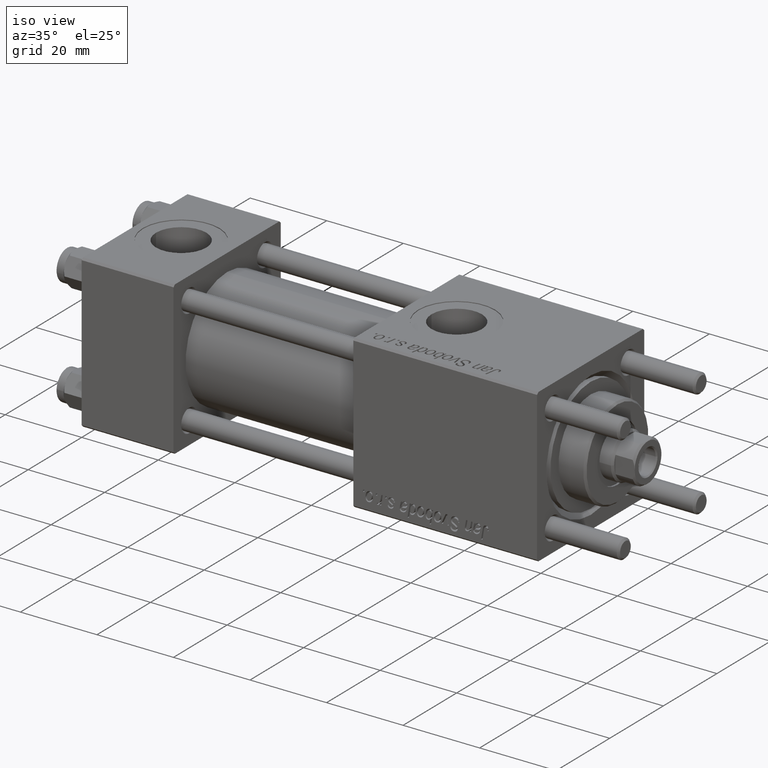
[diagram: clean part render]
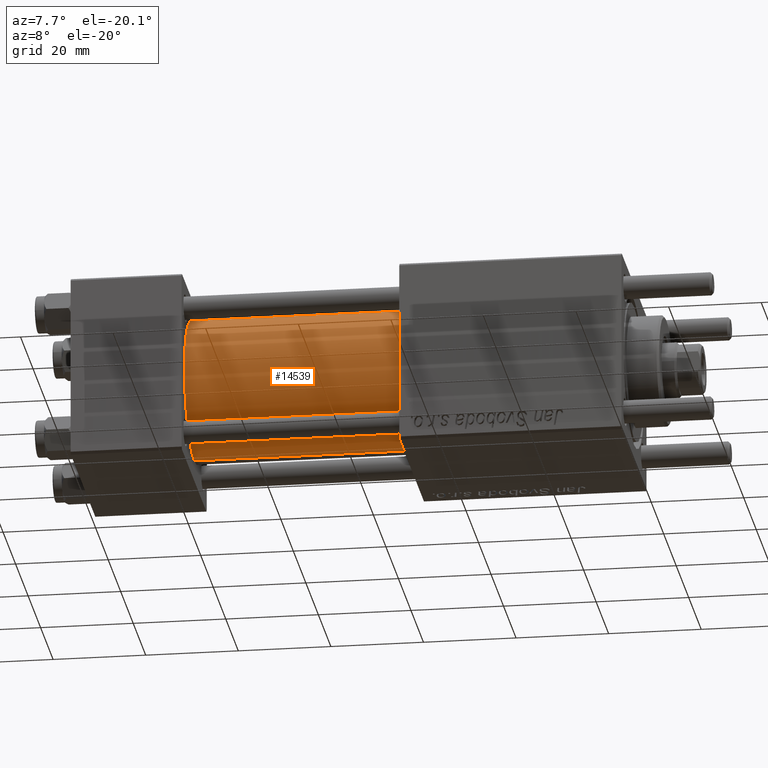
[diagram: tour spotlight — one face highlighted and labeled with its STEP entity id]
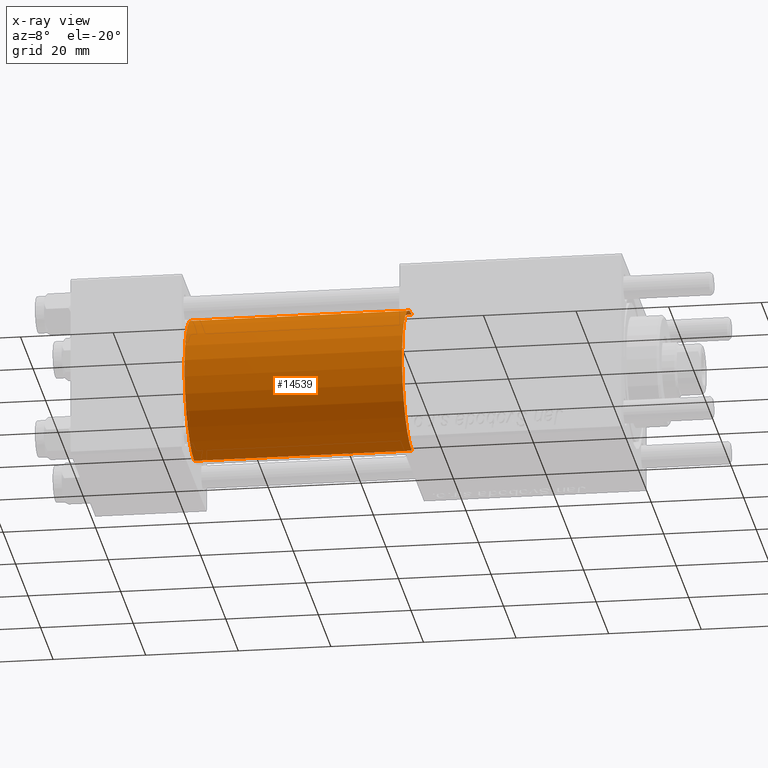
[diagram: x-ray of the same camera — body ghosted, this tour face saturated]
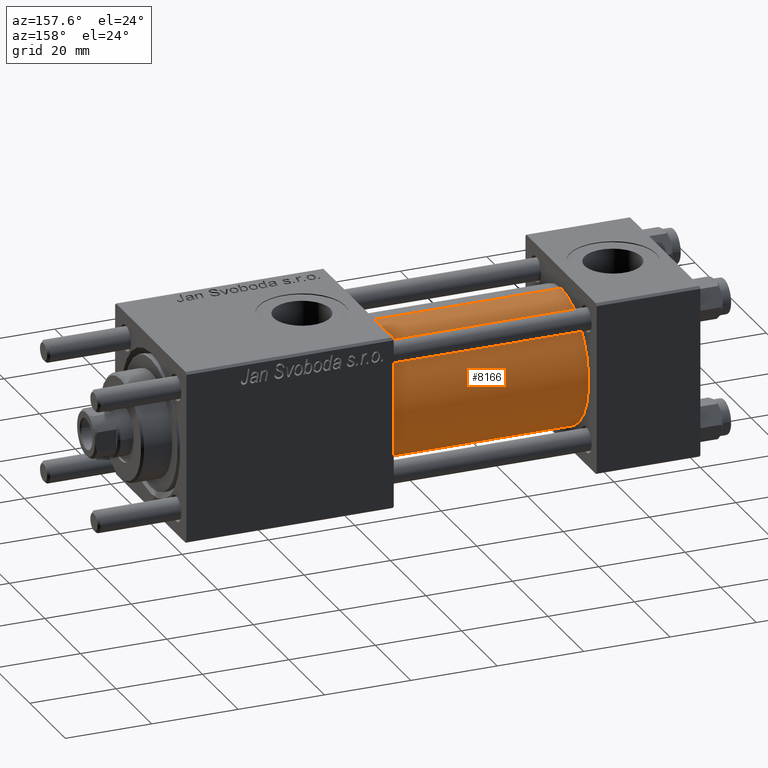
[diagram: tour spotlight — one face highlighted and labeled with its STEP entity id]
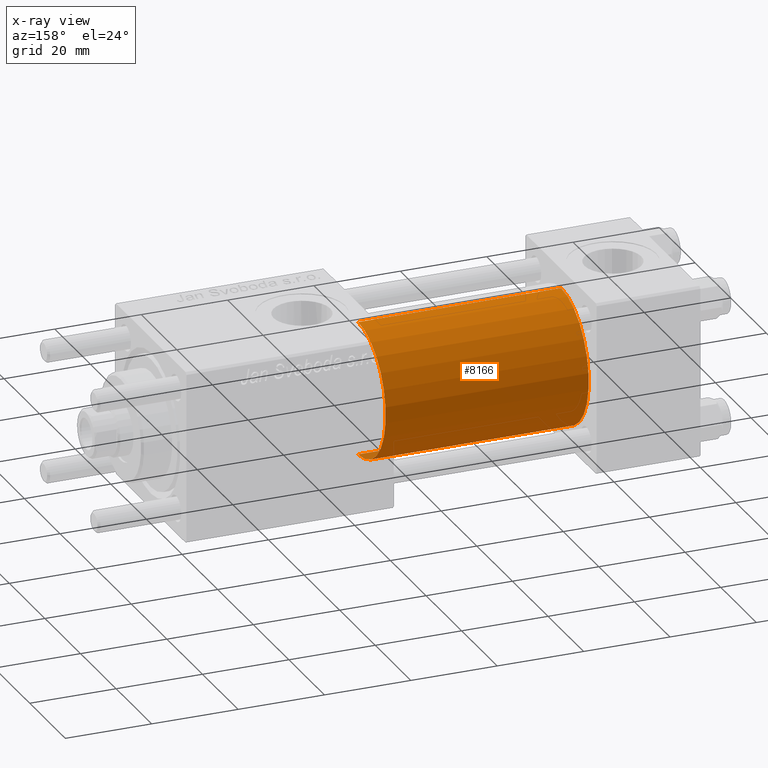
[diagram: x-ray of the same camera — body ghosted, this tour face saturated]
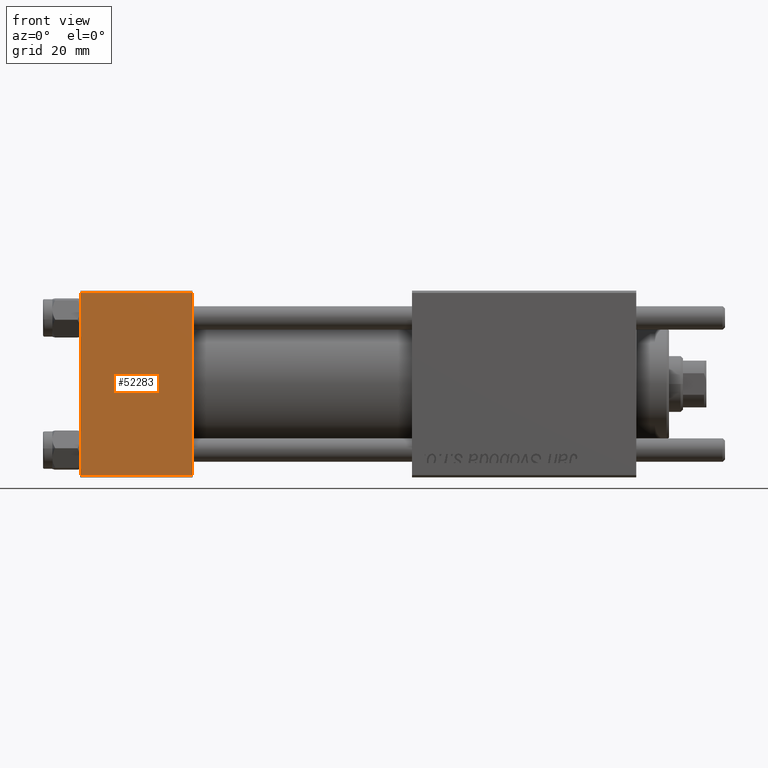
[diagram: tour spotlight — one face highlighted and labeled with its STEP entity id]
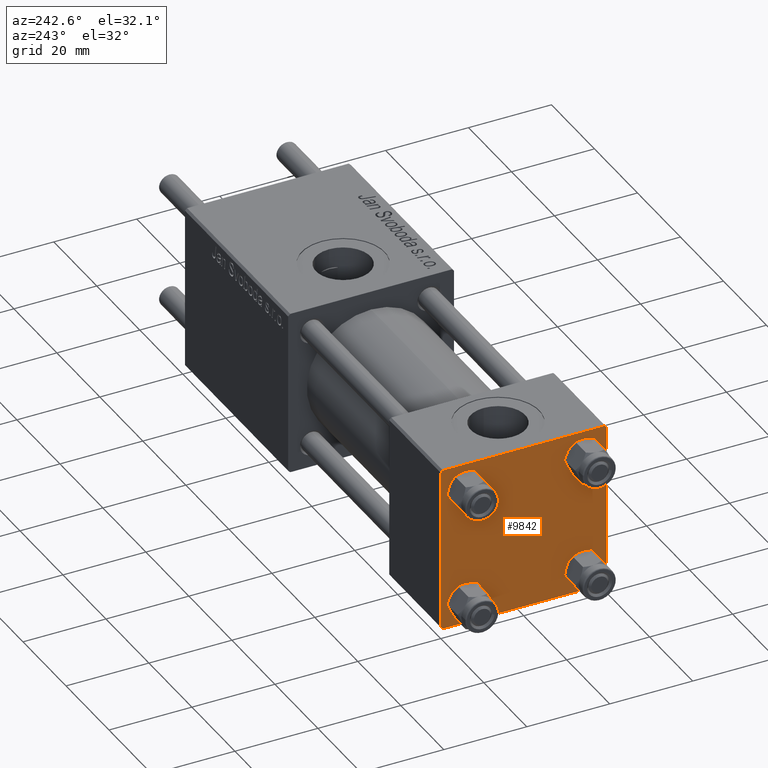
[diagram: tour spotlight — one face highlighted and labeled with its STEP entity id]
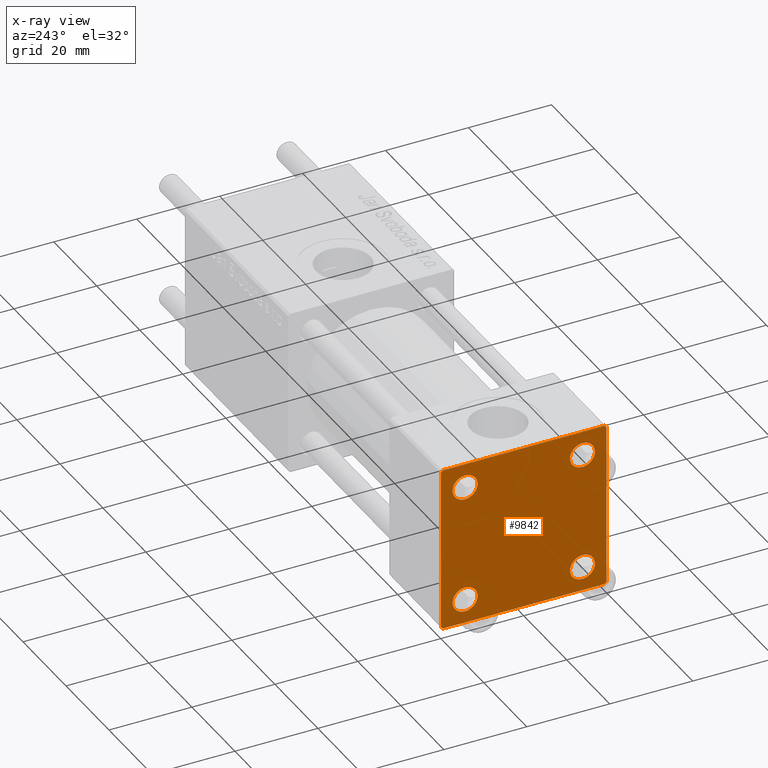
[diagram: x-ray of the same camera — body ghosted, this tour face saturated]
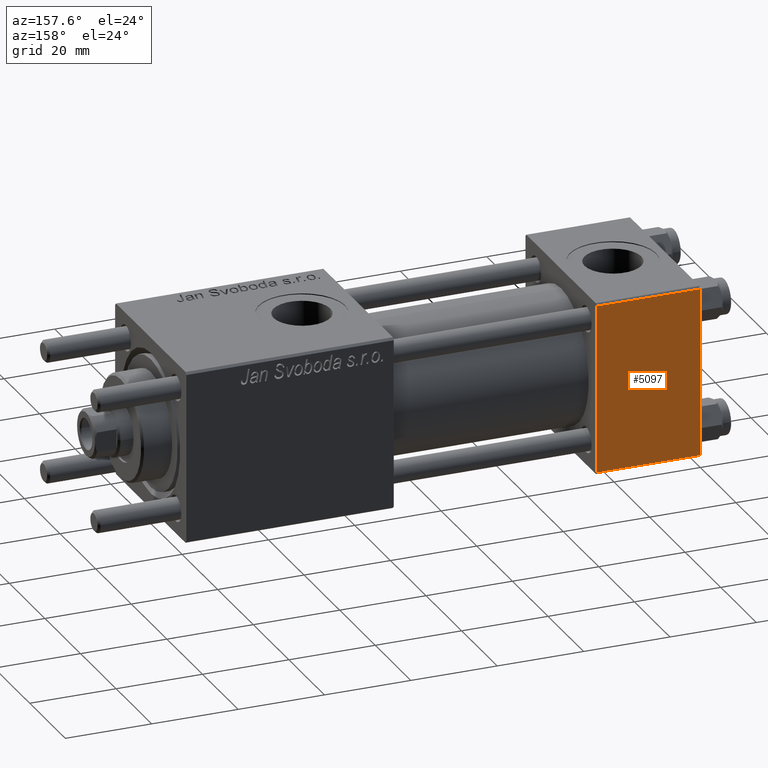
[diagram: tour spotlight — one face highlighted and labeled with its STEP entity id]
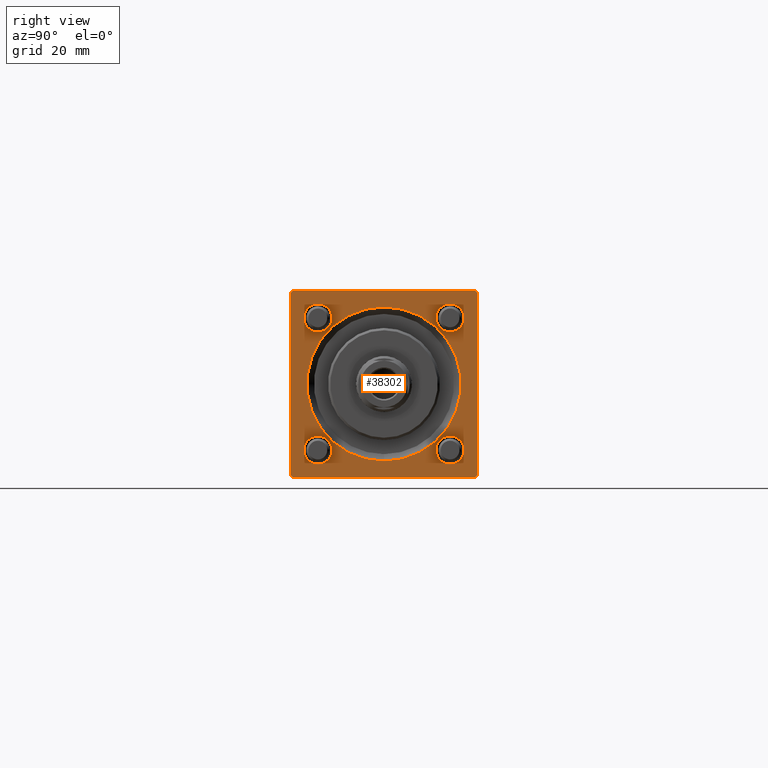
[diagram: tour spotlight — one face highlighted and labeled with its STEP entity id]
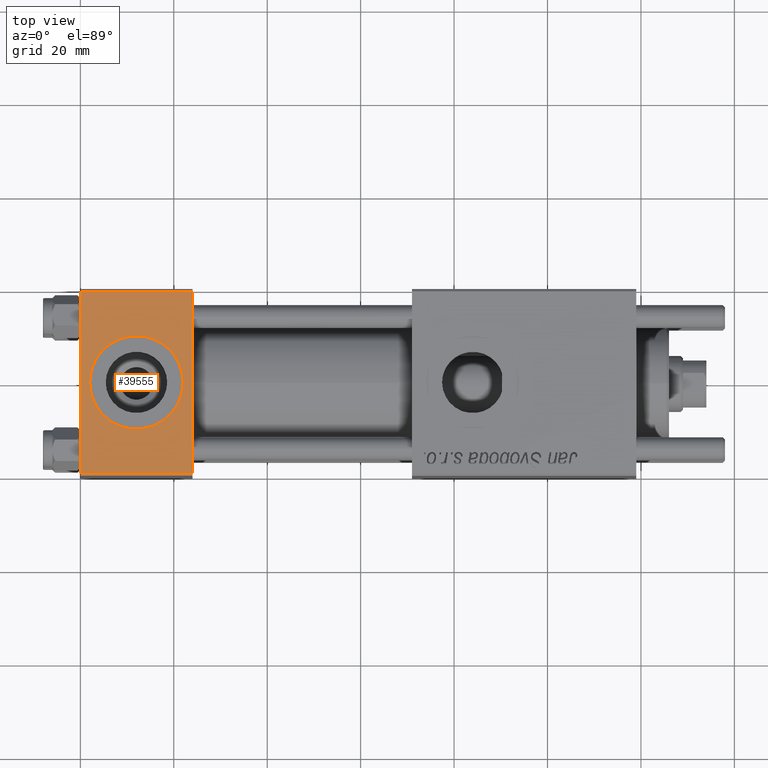
[diagram: tour spotlight — one face highlighted and labeled with its STEP entity id]
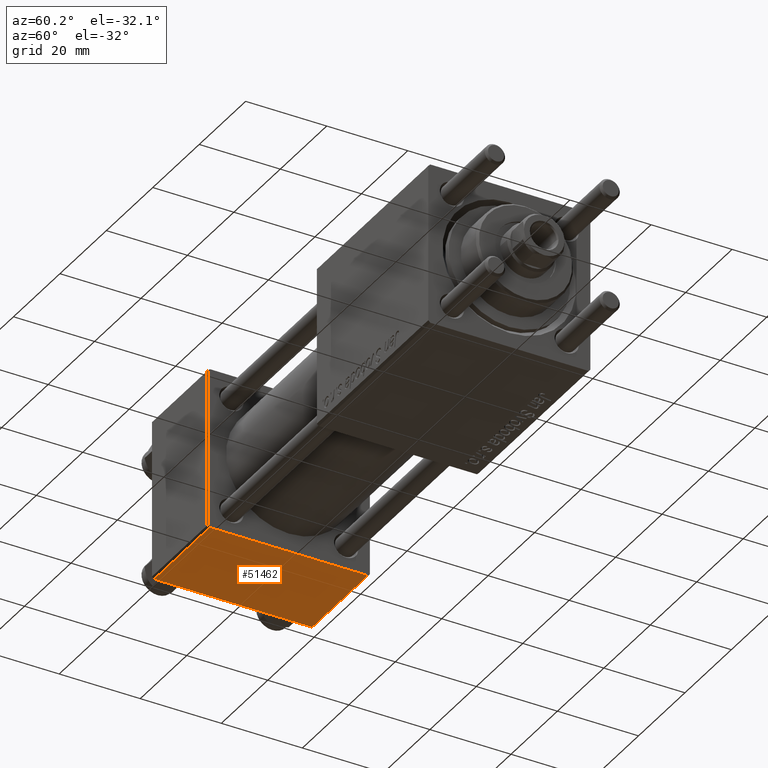
[diagram: tour spotlight — one face highlighted and labeled with its STEP entity id]
A machine part: a face-by-face anatomy tour. The part has 1155 B-rep faces; the first image is the clean iso view, then the 8 largest visible faces are spotlighted one at a time (largest first), each with its STEP entity span.

Face 1 — auxiliary view, entity #14539. An x-ray twin of the same camera follows (body ghosted, this face saturated) — the face is partly hidden behind the body. In plain terms, the highlighted cylindrical surface (partial cylindrical patch) has radius 15.5 mm, axis along (-1, -0, -0).
Definition (entity closure, byte-faithful):
#3411 = FACE_OUTER_BOUND ( 'NONE', #56368, .T. ) ;
#6644 = AXIS2_PLACEMENT_3D ( 'NONE', #25785, #20907, #17427 ) ;
#6660 = EDGE_CURVE ( 'NONE', #21295, #33046, #35747, .T. ) ;
#7955 = CIRCLE ( 'NONE', #17157, 15.50000000000000000 ) ;
#8281 = EDGE_CURVE ( 'NONE', #15133, #33046, #9038, .T. ) ;
#9038 = LINE ( 'NONE', #44904, #13765 ) ;
#10284 = CARTESIAN_POINT ( 'NONE',  ( 71.00000000000001421, -7.038826752868131828E-16, -15.50000000000000000 ) ) ;
#11392 = CARTESIAN_POINT ( 'NONE',  ( 24.00000000000000000, -2.602085213965210642E-15, 15.50000000000000000 ) ) ;
#13759 = DIRECTION ( 'NONE',  ( -1.000000000000000000, -0.000000000000000000, -0.000000000000000000 ) ) ;
#13765 = VECTOR ( 'NONE', #22810, 1000.000000000000000 ) ;
#13843 = DIRECTION ( 'NONE',  ( 0.000000000000000000, 0.000000000000000000, 1.000000000000000000 ) ) ;
#14539 = ADVANCED_FACE ( 'NONE', ( #3411 ), #39250, .T. ) ;
#15133 = VERTEX_POINT ( 'NONE', #10284 ) ;
#17157 = AXIS2_PLACEMENT_3D ( 'NONE', #27937, #44594, #31971 ) ;
#17427 = DIRECTION ( 'NONE',  ( 0.000000000000000000, 0.000000000000000000, 1.000000000000000000 ) ) ;
#19847 = CARTESIAN_POINT ( 'NONE',  ( 71.00000000000001421, -2.602085213965210642E-15, 15.50000000000000000 ) ) ;
#20907 = DIRECTION ( 'NONE',  ( -1.000000000000000000, -0.000000000000000000, -0.000000000000000000 ) ) ;
#21295 = VERTEX_POINT ( 'NONE', #11392 ) ;
#22810 = DIRECTION ( 'NONE',  ( -1.000000000000000000, -0.000000000000000000, -0.000000000000000000 ) ) ;
#25785 = CARTESIAN_POINT ( 'NONE',  ( 71.00000000000001421, -2.602085213965210642E-15, 0.000000000000000000 ) ) ;
#26581 = VERTEX_POINT ( 'NONE', #19847 ) ;
#27487 = AXIS2_PLACEMENT_3D ( 'NONE', #40247, #45125, #13843 ) ;
#27937 = CARTESIAN_POINT ( 'NONE',  ( 71.00000000000001421, -2.602085213965210642E-15, 0.000000000000000000 ) ) ;
#28652 = ORIENTED_EDGE ( 'NONE', *, *, #8281, .F. ) ;
#31971 = DIRECTION ( 'NONE',  ( 0.000000000000000000, 0.000000000000000000, -1.000000000000000000 ) ) ;
#32418 = CARTESIAN_POINT ( 'NONE',  ( 71.00000000000001421, -2.602085213965210642E-15, 15.50000000000000000 ) ) ;
#32913 = EDGE_CURVE ( 'NONE', #26581, #15133, #7955, .T. ) ;
#33046 = VERTEX_POINT ( 'NONE', #41711 ) ;
#33245 = ORIENTED_EDGE ( 'NONE', *, *, #49877, .T. ) ;
#35747 = CIRCLE ( 'NONE', #27487, 15.50000000000000000 ) ;
#38395 = VECTOR ( 'NONE', #13759, 1000.000000000000000 ) ;
#39250 = CYLINDRICAL_SURFACE ( 'NONE', #6644, 15.50000000000000000 ) ;
#40247 = CARTESIAN_POINT ( 'NONE',  ( 24.00000000000000000, -2.602085213965210642E-15, 0.000000000000000000 ) ) ;
#41711 = CARTESIAN_POINT ( 'NONE',  ( 24.00000000000000000, -7.038826752868131828E-16, -15.50000000000000000 ) ) ;
#44594 = DIRECTION ( 'NONE',  ( 1.000000000000000000, 0.000000000000000000, 0.000000000000000000 ) ) ;
#44904 = CARTESIAN_POINT ( 'NONE',  ( 71.00000000000001421, -7.038826752868131828E-16, -15.50000000000000000 ) ) ;
#45125 = DIRECTION ( 'NONE',  ( 1.000000000000000000, 0.000000000000000000, 0.000000000000000000 ) ) ;
#48467 = ORIENTED_EDGE ( 'NONE', *, *, #6660, .T. ) ;
#49877 = EDGE_CURVE ( 'NONE', #26581, #21295, #53371, .T. ) ;
#53371 = LINE ( 'NONE', #32418, #38395 ) ;
#55239 = ORIENTED_EDGE ( 'NONE', *, *, #32913, .F. ) ;
#56368 = EDGE_LOOP ( 'NONE', ( #28652, #55239, #33245, #48467 ) ) ;

Face 2 — auxiliary view, entity #8166. An x-ray twin of the same camera follows (body ghosted, this face saturated) — the face is partly hidden behind the body. In plain terms, the highlighted cylindrical surface (partial cylindrical patch) has radius 15.5 mm, axis along (-1, -0, -0).
Definition (entity closure, byte-faithful):
#372 = EDGE_CURVE ( 'NONE', #33046, #21295, #55914, .T. ) ;
#4640 = ORIENTED_EDGE ( 'NONE', *, *, #49877, .F. ) ;
#4685 = AXIS2_PLACEMENT_3D ( 'NONE', #21157, #38670, #56164 ) ;
#8166 = ADVANCED_FACE ( 'NONE', ( #38635 ), #21120, .T. ) ;
#8281 = EDGE_CURVE ( 'NONE', #15133, #33046, #9038, .T. ) ;
#8408 = EDGE_CURVE ( 'NONE', #15133, #26581, #50490, .T. ) ;
#8816 = ORIENTED_EDGE ( 'NONE', *, *, #372, .T. ) ;
#9038 = LINE ( 'NONE', #44904, #13765 ) ;
#10284 = CARTESIAN_POINT ( 'NONE',  ( 71.00000000000001421, -7.038826752868131828E-16, -15.50000000000000000 ) ) ;
#11392 = CARTESIAN_POINT ( 'NONE',  ( 24.00000000000000000, -2.602085213965210642E-15, 15.50000000000000000 ) ) ;
#13759 = DIRECTION ( 'NONE',  ( -1.000000000000000000, -0.000000000000000000, -0.000000000000000000 ) ) ;
#13765 = VECTOR ( 'NONE', #22810, 1000.000000000000000 ) ;
#13800 = AXIS2_PLACEMENT_3D ( 'NONE', #51202, #20489, #47181 ) ;
#15133 = VERTEX_POINT ( 'NONE', #10284 ) ;
#17548 = ORIENTED_EDGE ( 'NONE', *, *, #8281, .T. ) ;
#19847 = CARTESIAN_POINT ( 'NONE',  ( 71.00000000000001421, -2.602085213965210642E-15, 15.50000000000000000 ) ) ;
#20489 = DIRECTION ( 'NONE',  ( 1.000000000000000000, 0.000000000000000000, 0.000000000000000000 ) ) ;
#21120 = CYLINDRICAL_SURFACE ( 'NONE', #55948, 15.50000000000000000 ) ;
#21157 = CARTESIAN_POINT ( 'NONE',  ( 24.00000000000000000, -2.602085213965210642E-15, 0.000000000000000000 ) ) ;
#21295 = VERTEX_POINT ( 'NONE', #11392 ) ;
#22810 = DIRECTION ( 'NONE',  ( -1.000000000000000000, -0.000000000000000000, -0.000000000000000000 ) ) ;
#26264 = DIRECTION ( 'NONE',  ( -1.000000000000000000, -0.000000000000000000, -0.000000000000000000 ) ) ;
#26581 = VERTEX_POINT ( 'NONE', #19847 ) ;
#32418 = CARTESIAN_POINT ( 'NONE',  ( 71.00000000000001421, -2.602085213965210642E-15, 15.50000000000000000 ) ) ;
#33046 = VERTEX_POINT ( 'NONE', #41711 ) ;
#34052 = CARTESIAN_POINT ( 'NONE',  ( 71.00000000000001421, -2.602085213965210642E-15, 0.000000000000000000 ) ) ;
#38395 = VECTOR ( 'NONE', #13759, 1000.000000000000000 ) ;
#38635 = FACE_OUTER_BOUND ( 'NONE', #48358, .T. ) ;
#38670 = DIRECTION ( 'NONE',  ( 1.000000000000000000, 0.000000000000000000, 0.000000000000000000 ) ) ;
#41711 = CARTESIAN_POINT ( 'NONE',  ( 24.00000000000000000, -7.038826752868131828E-16, -15.50000000000000000 ) ) ;
#44904 = CARTESIAN_POINT ( 'NONE',  ( 71.00000000000001421, -7.038826752868131828E-16, -15.50000000000000000 ) ) ;
#47181 = DIRECTION ( 'NONE',  ( 0.000000000000000000, 0.000000000000000000, -1.000000000000000000 ) ) ;
#48358 = EDGE_LOOP ( 'NONE', ( #49659, #17548, #8816, #4640 ) ) ;
#49659 = ORIENTED_EDGE ( 'NONE', *, *, #8408, .F. ) ;
#49877 = EDGE_CURVE ( 'NONE', #26581, #21295, #53371, .T. ) ;
#50490 = CIRCLE ( 'NONE', #13800, 15.50000000000000000 ) ;
#51202 = CARTESIAN_POINT ( 'NONE',  ( 71.00000000000001421, -2.602085213965210642E-15, 0.000000000000000000 ) ) ;
#52117 = DIRECTION ( 'NONE',  ( 0.000000000000000000, 0.000000000000000000, 1.000000000000000000 ) ) ;
#53371 = LINE ( 'NONE', #32418, #38395 ) ;
#55914 = CIRCLE ( 'NONE', #4685, 15.50000000000000000 ) ;
#55948 = AXIS2_PLACEMENT_3D ( 'NONE', #34052, #26264, #52117 ) ;
#56164 = DIRECTION ( 'NONE',  ( 0.000000000000000000, 0.000000000000000000, 1.000000000000000000 ) ) ;

Face 3 — front view, entity #52283. In plain terms, the highlighted planar face has unit normal (0, 1, 0).
Definition (entity closure, byte-faithful):
#179 = CARTESIAN_POINT ( 'NONE',  ( 24.00000000000000000, -20.00000000000000355, 19.49999999999998224 ) ) ;
#737 = VERTEX_POINT ( 'NONE', #44295 ) ;
#3003 = EDGE_CURVE ( 'NONE', #8495, #11238, #23403, .T. ) ;
#3073 = LINE ( 'NONE', #46124, #28475 ) ;
#3374 = CARTESIAN_POINT ( 'NONE',  ( 24.00000000000000000, -20.00000000000000355, 19.99999999999998934 ) ) ;
#4792 = LINE ( 'NONE', #35507, #48332 ) ;
#7527 = EDGE_CURVE ( 'NONE', #21814, #737, #30426, .T. ) ;
#7673 = FACE_OUTER_BOUND ( 'NONE', #7904, .T. ) ;
#7904 = EDGE_LOOP ( 'NONE', ( #23292, #39798, #43716, #25062 ) ) ;
#8495 = VERTEX_POINT ( 'NONE', #35091 ) ;
#8604 = CARTESIAN_POINT ( 'NONE',  ( 24.00000000000000000, -20.00000000000000000, -19.49999999999999645 ) ) ;
#8787 = EDGE_CURVE ( 'NONE', #8495, #737, #3073, .T. ) ;
#11238 = VERTEX_POINT ( 'NONE', #20146 ) ;
#11955 = VECTOR ( 'NONE', #13185, 1000.000000000000000 ) ;
#12532 = DIRECTION ( 'NONE',  ( -0.000000000000000000, 1.000000000000000000, 8.673617379884036705E-17 ) ) ;
#13185 = DIRECTION ( 'NONE',  ( 1.000000000000000000, 0.000000000000000000, 0.000000000000000000 ) ) ;
#13934 = DIRECTION ( 'NONE',  ( -1.000000000000000000, 0.000000000000000000, 0.000000000000000000 ) ) ;
#20146 = CARTESIAN_POINT ( 'NONE',  ( 0.000000000000000000, -20.00000000000000355, 19.49999999999998224 ) ) ;
#21814 = VERTEX_POINT ( 'NONE', #29841 ) ;
#23292 = ORIENTED_EDGE ( 'NONE', *, *, #46790, .T. ) ;
#23403 = LINE ( 'NONE', #179, #42991 ) ;
#25062 = ORIENTED_EDGE ( 'NONE', *, *, #3003, .T. ) ;
#28311 = DIRECTION ( 'NONE',  ( 0.000000000000000000, 8.673617379884036705E-17, -1.000000000000000000 ) ) ;
#28475 = VECTOR ( 'NONE', #28311, 1000.000000000000000 ) ;
#29841 = CARTESIAN_POINT ( 'NONE',  ( 0.000000000000000000, -20.00000000000000000, -19.49999999999999645 ) ) ;
#30050 = DIRECTION ( 'NONE',  ( 0.000000000000000000, -8.673617379884036705E-17, 1.000000000000000000 ) ) ;
#30426 = LINE ( 'NONE', #8604, #11955 ) ;
#35091 = CARTESIAN_POINT ( 'NONE',  ( 24.00000000000000000, -20.00000000000000355, 19.49999999999998224 ) ) ;
#35507 = CARTESIAN_POINT ( 'NONE',  ( 0.000000000000000000, -20.00000000000000355, 19.99999999999998934 ) ) ;
#36586 = AXIS2_PLACEMENT_3D ( 'NONE', #3374, #12532, #30050 ) ;
#38665 = PLANE ( 'NONE',  #36586 ) ;
#39798 = ORIENTED_EDGE ( 'NONE', *, *, #7527, .T. ) ;
#39800 = DIRECTION ( 'NONE',  ( 0.000000000000000000, 8.673617379884036705E-17, -1.000000000000000000 ) ) ;
#42991 = VECTOR ( 'NONE', #13934, 1000.000000000000000 ) ;
#43716 = ORIENTED_EDGE ( 'NONE', *, *, #8787, .F. ) ;
#44295 = CARTESIAN_POINT ( 'NONE',  ( 24.00000000000000000, -20.00000000000000000, -19.49999999999999645 ) ) ;
#46124 = CARTESIAN_POINT ( 'NONE',  ( 24.00000000000000000, -20.00000000000000355, 19.99999999999998934 ) ) ;
#46790 = EDGE_CURVE ( 'NONE', #11238, #21814, #4792, .T. ) ;
#48332 = VECTOR ( 'NONE', #39800, 1000.000000000000000 ) ;
#52283 = ADVANCED_FACE ( 'NONE', ( #7673 ), #38665, .F. ) ;

Face 4 — auxiliary view, entity #9842. An x-ray twin of the same camera follows (body ghosted, this face saturated) — the face is partly hidden behind the body. In plain terms, the highlighted planar face has unit normal (-1, 0, 0).
Definition (entity closure, byte-faithful):
#17 = DIRECTION ( 'NONE',  ( -0.000000000000000000, -0.7071067811865524577, -0.7071067811865426878 ) ) ;
#291 = CARTESIAN_POINT ( 'NONE',  ( 0.000000000000000000, -14.14999999999999503, -11.15000000000000036 ) ) ;
#469 = EDGE_LOOP ( 'NONE', ( #43109, #28200 ) ) ;
#605 = DIRECTION ( 'NONE',  ( 1.000000000000000000, 0.000000000000000000, 0.000000000000000000 ) ) ;
#1084 = FACE_BOUND ( 'NONE', #469, .T. ) ;
#1301 = DIRECTION ( 'NONE',  ( 0.000000000000000000, 0.000000000000000000, 1.000000000000000000 ) ) ;
#1750 = ORIENTED_EDGE ( 'NONE', *, *, #55201, .T. ) ;
#2070 = EDGE_CURVE ( 'NONE', #11238, #5121, #51434, .T. ) ;
#2271 = ORIENTED_EDGE ( 'NONE', *, *, #2070, .T. ) ;
#3063 = VECTOR ( 'NONE', #43757, 999.9999999999998863 ) ;
#3341 = CIRCLE ( 'NONE', #27149, 3.000000000000004441 ) ;
#3694 = VERTEX_POINT ( 'NONE', #50096 ) ;
#4201 = EDGE_CURVE ( 'NONE', #37782, #8684, #5405, .T. ) ;
#4792 = LINE ( 'NONE', #35507, #48332 ) ;
#5121 = VERTEX_POINT ( 'NONE', #12566 ) ;
#5173 = ORIENTED_EDGE ( 'NONE', *, *, #10164, .T. ) ;
#5375 = CARTESIAN_POINT ( 'NONE',  ( 0.000000000000000000, 0.000000000000000000, 0.000000000000000000 ) ) ;
#5405 = CIRCLE ( 'NONE', #37512, 3.000000000000004441 ) ;
#6353 = EDGE_CURVE ( 'NONE', #13395, #35078, #53306, .T. ) ;
#6874 = DIRECTION ( 'NONE',  ( 1.000000000000000000, 0.000000000000000000, 0.000000000000000000 ) ) ;
#7113 = EDGE_CURVE ( 'NONE', #33342, #16994, #35785, .T. ) ;
#7406 = VERTEX_POINT ( 'NONE', #44181 ) ;
#7538 = DIRECTION ( 'NONE',  ( 1.000000000000000000, 0.000000000000000000, 0.000000000000000000 ) ) ;
#7548 = DIRECTION ( 'NONE',  ( 1.000000000000000000, 0.000000000000000000, 0.000000000000000000 ) ) ;
#7788 = EDGE_LOOP ( 'NONE', ( #27284, #9398 ) ) ;
#7805 = DIRECTION ( 'NONE',  ( -0.000000000000000000, 0.7071067811865500152, 0.7071067811865451302 ) ) ;
#8457 = CARTESIAN_POINT ( 'NONE',  ( 0.000000000000000000, 20.00000000000000000, 20.00000000000000000 ) ) ;
#8684 = VERTEX_POINT ( 'NONE', #291 ) ;
#9198 = VERTEX_POINT ( 'NONE', #15610 ) ;
#9398 = ORIENTED_EDGE ( 'NONE', *, *, #21379, .T. ) ;
#9842 = ADVANCED_FACE ( 'NONE', ( #27186, #1084, #53315, #30655, #35255 ), #30930, .T. ) ;
#9970 = ORIENTED_EDGE ( 'NONE', *, *, #16182, .T. ) ;
#10083 = ORIENTED_EDGE ( 'NONE', *, *, #7113, .T. ) ;
#10164 = EDGE_CURVE ( 'NONE', #38379, #21912, #50522, .T. ) ;
#10618 = EDGE_CURVE ( 'NONE', #3694, #7406, #18078, .T. ) ;
#10692 = ORIENTED_EDGE ( 'NONE', *, *, #6353, .T. ) ;
#10994 = VERTEX_POINT ( 'NONE', #24830 ) ;
#11238 = VERTEX_POINT ( 'NONE', #20146 ) ;
#12398 = CARTESIAN_POINT ( 'NONE',  ( 0.000000000000000000, -14.14999999999999503, 14.15000000000000391 ) ) ;
#12566 = CARTESIAN_POINT ( 'NONE',  ( 0.000000000000000000, -19.49999999999999289, 19.99999999999998934 ) ) ;
#13052 = CARTESIAN_POINT ( 'NONE',  ( -0.000000000000000000, 19.75000000000013500, 19.74999999999986144 ) ) ;
#13145 = DIRECTION ( 'NONE',  ( -1.000000000000000000, 0.000000000000000000, -0.000000000000000000 ) ) ;
#13395 = VERTEX_POINT ( 'NONE', #41287 ) ;
#13986 = CARTESIAN_POINT ( 'NONE',  ( 0.000000000000000000, 20.00000000000000000, 20.00000000000000000 ) ) ;
#14680 = VECTOR ( 'NONE', #20749, 1000.000000000000000 ) ;
#15292 = CARTESIAN_POINT ( 'NONE',  ( 0.000000000000000000, -19.75000000000020961, -19.74999999999979394 ) ) ;
#15545 = CIRCLE ( 'NONE', #36625, 2.999999999999983569 ) ;
#15610 = CARTESIAN_POINT ( 'NONE',  ( 0.000000000000000000, 19.50000000000000000, 20.00000000000000000 ) ) ;
#15866 = LINE ( 'NONE', #15292, #14680 ) ;
#16125 = DIRECTION ( 'NONE',  ( 0.000000000000000000, 0.000000000000000000, 1.000000000000000000 ) ) ;
#16182 = EDGE_CURVE ( 'NONE', #9198, #13395, #16797, .T. ) ;
#16498 = LINE ( 'NONE', #8457, #46420 ) ;
#16797 = LINE ( 'NONE', #13052, #3063 ) ;
#16994 = VERTEX_POINT ( 'NONE', #25789 ) ;
#17234 = LINE ( 'NONE', #34756, #25490 ) ;
#17262 = DIRECTION ( 'NONE',  ( 0.000000000000000000, 0.000000000000000000, 1.000000000000000000 ) ) ;
#17936 = CARTESIAN_POINT ( 'NONE',  ( 0.000000000000000000, 14.14999999999999858, -14.15000000000000036 ) ) ;
#18078 = LINE ( 'NONE', #53103, #33127 ) ;
#18127 = CARTESIAN_POINT ( 'NONE',  ( 0.000000000000000000, -14.14999999999999503, 11.15000000000002345 ) ) ;
#18577 = DIRECTION ( 'NONE',  ( -0.000000000000000000, 0.000000000000000000, 1.000000000000000000 ) ) ;
#20001 = CARTESIAN_POINT ( 'NONE',  ( 0.000000000000000000, -14.14999999999999503, 17.14999999999998792 ) ) ;
#20146 = CARTESIAN_POINT ( 'NONE',  ( 0.000000000000000000, -20.00000000000000355, 19.49999999999998224 ) ) ;
#20442 = ORIENTED_EDGE ( 'NONE', *, *, #55861, .T. ) ;
#20749 = DIRECTION ( 'NONE',  ( 0.000000000000000000, -0.7071067811865401342, 0.7071067811865549002 ) ) ;
#20899 = EDGE_LOOP ( 'NONE', ( #32269, #5173 ) ) ;
#21379 = EDGE_CURVE ( 'NONE', #41069, #10994, #25060, .T. ) ;
#21814 = VERTEX_POINT ( 'NONE', #29841 ) ;
#21912 = VERTEX_POINT ( 'NONE', #20001 ) ;
#22260 = DIRECTION ( 'NONE',  ( 0.000000000000000000, 0.000000000000000000, 1.000000000000000000 ) ) ;
#22417 = DIRECTION ( 'NONE',  ( 0.000000000000000000, 0.000000000000000000, 1.000000000000000000 ) ) ;
#24350 = EDGE_CURVE ( 'NONE', #10994, #41069, #34273, .T. ) ;
#24830 = CARTESIAN_POINT ( 'NONE',  ( 0.000000000000000000, 14.14999999999999858, -11.15000000000001812 ) ) ;
#25060 = CIRCLE ( 'NONE', #36928, 2.999999999999983569 ) ;
#25490 = VECTOR ( 'NONE', #17, 1000.000000000000000 ) ;
#25789 = CARTESIAN_POINT ( 'NONE',  ( 0.000000000000000000, 14.14999999999999858, 11.15000000000001990 ) ) ;
#26161 = DIRECTION ( 'NONE',  ( 1.000000000000000000, 0.000000000000000000, 0.000000000000000000 ) ) ;
#26837 = DIRECTION ( 'NONE',  ( 1.000000000000000000, 0.000000000000000000, 0.000000000000000000 ) ) ;
#27149 = AXIS2_PLACEMENT_3D ( 'NONE', #39348, #26161, #22417 ) ;
#27186 = FACE_BOUND ( 'NONE', #20899, .T. ) ;
#27284 = ORIENTED_EDGE ( 'NONE', *, *, #24350, .T. ) ;
#28200 = ORIENTED_EDGE ( 'NONE', *, *, #4201, .T. ) ;
#28450 = VECTOR ( 'NONE', #7805, 1000.000000000000114 ) ;
#29363 = VECTOR ( 'NONE', #31500, 1000.000000000000000 ) ;
#29841 = CARTESIAN_POINT ( 'NONE',  ( 0.000000000000000000, -20.00000000000000000, -19.49999999999999645 ) ) ;
#30655 = FACE_BOUND ( 'NONE', #49815, .T. ) ;
#30930 = PLANE ( 'NONE',  #44132 ) ;
#31020 = EDGE_CURVE ( 'NONE', #8684, #37782, #3341, .T. ) ;
#31500 = DIRECTION ( 'NONE',  ( 0.000000000000000000, 0.000000000000000000, -1.000000000000000000 ) ) ;
#32269 = ORIENTED_EDGE ( 'NONE', *, *, #52798, .T. ) ;
#32880 = CARTESIAN_POINT ( 'NONE',  ( 0.000000000000000000, 14.14999999999999858, 17.14999999999998437 ) ) ;
#33127 = VECTOR ( 'NONE', #43926, 1000.000000000000000 ) ;
#33342 = VERTEX_POINT ( 'NONE', #32880 ) ;
#33932 = AXIS2_PLACEMENT_3D ( 'NONE', #55753, #7548, #17262 ) ;
#34087 = EDGE_LOOP ( 'NONE', ( #10692, #37320, #52193, #20442, #34236, #2271, #44048, #9970 ) ) ;
#34236 = ORIENTED_EDGE ( 'NONE', *, *, #46790, .F. ) ;
#34273 = CIRCLE ( 'NONE', #56255, 2.999999999999983569 ) ;
#34308 = DIRECTION ( 'NONE',  ( 0.000000000000000000, -1.000000000000000000, -2.602085213965210149E-16 ) ) ;
#34598 = CARTESIAN_POINT ( 'NONE',  ( 0.000000000000000000, 14.14999999999999858, -14.15000000000000036 ) ) ;
#34756 = CARTESIAN_POINT ( 'NONE',  ( -0.000000000000000000, 19.74999999999986855, -19.75000000000014211 ) ) ;
#35078 = VERTEX_POINT ( 'NONE', #36072 ) ;
#35255 = FACE_OUTER_BOUND ( 'NONE', #34087, .T. ) ;
#35507 = CARTESIAN_POINT ( 'NONE',  ( 0.000000000000000000, -20.00000000000000355, 19.99999999999998934 ) ) ;
#35785 = CIRCLE ( 'NONE', #42207, 2.999999999999983569 ) ;
#35912 = DIRECTION ( 'NONE',  ( 0.000000000000000000, 0.000000000000000000, 1.000000000000000000 ) ) ;
#36072 = CARTESIAN_POINT ( 'NONE',  ( 0.000000000000000000, 20.00000000000000000, -19.50000000000002132 ) ) ;
#36342 = EDGE_CURVE ( 'NONE', #9198, #5121, #16498, .T. ) ;
#36625 = AXIS2_PLACEMENT_3D ( 'NONE', #12398, #7538, #16125 ) ;
#36928 = AXIS2_PLACEMENT_3D ( 'NONE', #17936, #48943, #22260 ) ;
#37320 = ORIENTED_EDGE ( 'NONE', *, *, #48315, .T. ) ;
#37512 = AXIS2_PLACEMENT_3D ( 'NONE', #53687, #605, #35912 ) ;
#37782 = VERTEX_POINT ( 'NONE', #41926 ) ;
#38231 = CARTESIAN_POINT ( 'NONE',  ( -0.000000000000000000, -19.74999999999992539, 19.75000000000006395 ) ) ;
#38379 = VERTEX_POINT ( 'NONE', #18127 ) ;
#39348 = CARTESIAN_POINT ( 'NONE',  ( 0.000000000000000000, -14.14999999999999503, -14.15000000000000391 ) ) ;
#39800 = DIRECTION ( 'NONE',  ( 0.000000000000000000, 8.673617379884036705E-17, -1.000000000000000000 ) ) ;
#40647 = DIRECTION ( 'NONE',  ( 0.000000000000000000, 0.000000000000000000, 1.000000000000000000 ) ) ;
#41069 = VERTEX_POINT ( 'NONE', #52609 ) ;
#41287 = CARTESIAN_POINT ( 'NONE',  ( 0.000000000000000000, 20.00000000000000000, 19.49999999999999289 ) ) ;
#41926 = CARTESIAN_POINT ( 'NONE',  ( 0.000000000000000000, -14.14999999999999503, -17.15000000000000924 ) ) ;
#42207 = AXIS2_PLACEMENT_3D ( 'NONE', #46205, #6874, #40647 ) ;
#43109 = ORIENTED_EDGE ( 'NONE', *, *, #31020, .T. ) ;
#43473 = DIRECTION ( 'NONE',  ( 1.000000000000000000, 0.000000000000000000, 0.000000000000000000 ) ) ;
#43757 = DIRECTION ( 'NONE',  ( 0.000000000000000000, 0.7071067811865425767, -0.7071067811865525687 ) ) ;
#43926 = DIRECTION ( 'NONE',  ( 0.000000000000000000, -1.000000000000000000, 1.734723475976807094E-16 ) ) ;
#43981 = CIRCLE ( 'NONE', #33932, 2.999999999999983569 ) ;
#44048 = ORIENTED_EDGE ( 'NONE', *, *, #36342, .F. ) ;
#44132 = AXIS2_PLACEMENT_3D ( 'NONE', #5375, #13145, #18577 ) ;
#44181 = CARTESIAN_POINT ( 'NONE',  ( 0.000000000000000000, -19.50000000000000711, -20.00000000000000000 ) ) ;
#44323 = DIRECTION ( 'NONE',  ( 0.000000000000000000, 0.000000000000000000, 1.000000000000000000 ) ) ;
#46205 = CARTESIAN_POINT ( 'NONE',  ( 0.000000000000000000, 14.14999999999999858, 14.15000000000000036 ) ) ;
#46420 = VECTOR ( 'NONE', #34308, 1000.000000000000000 ) ;
#46790 = EDGE_CURVE ( 'NONE', #11238, #21814, #4792, .T. ) ;
#47791 = AXIS2_PLACEMENT_3D ( 'NONE', #52961, #26837, #1301 ) ;
#48315 = EDGE_CURVE ( 'NONE', #35078, #3694, #17234, .T. ) ;
#48332 = VECTOR ( 'NONE', #39800, 1000.000000000000000 ) ;
#48943 = DIRECTION ( 'NONE',  ( 1.000000000000000000, 0.000000000000000000, 0.000000000000000000 ) ) ;
#49815 = EDGE_LOOP ( 'NONE', ( #10083, #1750 ) ) ;
#50096 = CARTESIAN_POINT ( 'NONE',  ( 0.000000000000000000, 19.50000000000000711, -20.00000000000000711 ) ) ;
#50522 = CIRCLE ( 'NONE', #47791, 2.999999999999983569 ) ;
#51434 = LINE ( 'NONE', #38231, #28450 ) ;
#52193 = ORIENTED_EDGE ( 'NONE', *, *, #10618, .T. ) ;
#52609 = CARTESIAN_POINT ( 'NONE',  ( 0.000000000000000000, 14.14999999999999858, -17.14999999999998437 ) ) ;
#52798 = EDGE_CURVE ( 'NONE', #21912, #38379, #15545, .T. ) ;
#52961 = CARTESIAN_POINT ( 'NONE',  ( 0.000000000000000000, -14.14999999999999503, 14.15000000000000391 ) ) ;
#53103 = CARTESIAN_POINT ( 'NONE',  ( 0.000000000000000000, 20.00000000000000000, -20.00000000000000711 ) ) ;
#53306 = LINE ( 'NONE', #13986, #29363 ) ;
#53315 = FACE_BOUND ( 'NONE', #7788, .T. ) ;
#53687 = CARTESIAN_POINT ( 'NONE',  ( 0.000000000000000000, -14.14999999999999503, -14.15000000000000391 ) ) ;
#55201 = EDGE_CURVE ( 'NONE', #16994, #33342, #43981, .T. ) ;
#55753 = CARTESIAN_POINT ( 'NONE',  ( 0.000000000000000000, 14.14999999999999858, 14.15000000000000036 ) ) ;
#55861 = EDGE_CURVE ( 'NONE', #7406, #21814, #15866, .T. ) ;
#56255 = AXIS2_PLACEMENT_3D ( 'NONE', #34598, #43473, #44323 ) ;

Face 5 — auxiliary view, entity #5097. In plain terms, the highlighted planar face has unit normal (0, 1, 0).
Definition (entity closure, byte-faithful):
#2056 = CARTESIAN_POINT ( 'NONE',  ( 24.00000000000000000, 20.00000000000000000, -19.50000000000002132 ) ) ;
#5097 = ADVANCED_FACE ( 'NONE', ( #27305 ), #53999, .T. ) ;
#6058 = EDGE_LOOP ( 'NONE', ( #50956, #17828, #39541, #22411 ) ) ;
#6353 = EDGE_CURVE ( 'NONE', #13395, #35078, #53306, .T. ) ;
#7790 = CARTESIAN_POINT ( 'NONE',  ( 24.00000000000000000, 20.00000000000000000, 19.49999999999999289 ) ) ;
#11225 = LINE ( 'NONE', #28724, #21441 ) ;
#12649 = LINE ( 'NONE', #7790, #46272 ) ;
#13395 = VERTEX_POINT ( 'NONE', #41287 ) ;
#13986 = CARTESIAN_POINT ( 'NONE',  ( 0.000000000000000000, 20.00000000000000000, 20.00000000000000000 ) ) ;
#16084 = DIRECTION ( 'NONE',  ( 0.000000000000000000, 0.000000000000000000, -1.000000000000000000 ) ) ;
#17828 = ORIENTED_EDGE ( 'NONE', *, *, #24696, .T. ) ;
#21441 = VECTOR ( 'NONE', #16084, 1000.000000000000000 ) ;
#22411 = ORIENTED_EDGE ( 'NONE', *, *, #26676, .T. ) ;
#23571 = LINE ( 'NONE', #53995, #42533 ) ;
#24696 = EDGE_CURVE ( 'NONE', #44856, #35078, #23571, .T. ) ;
#24766 = EDGE_CURVE ( 'NONE', #41490, #44856, #11225, .T. ) ;
#25301 = DIRECTION ( 'NONE',  ( 1.000000000000000000, 0.000000000000000000, 0.000000000000000000 ) ) ;
#26676 = EDGE_CURVE ( 'NONE', #13395, #41490, #12649, .T. ) ;
#27305 = FACE_OUTER_BOUND ( 'NONE', #6058, .T. ) ;
#28724 = CARTESIAN_POINT ( 'NONE',  ( 24.00000000000000000, 20.00000000000000000, 20.00000000000000000 ) ) ;
#29363 = VECTOR ( 'NONE', #31500, 1000.000000000000000 ) ;
#30086 = DIRECTION ( 'NONE',  ( 0.000000000000000000, -0.000000000000000000, 1.000000000000000000 ) ) ;
#31500 = DIRECTION ( 'NONE',  ( 0.000000000000000000, 0.000000000000000000, -1.000000000000000000 ) ) ;
#33047 = DIRECTION ( 'NONE',  ( -0.000000000000000000, 1.000000000000000000, 0.000000000000000000 ) ) ;
#35078 = VERTEX_POINT ( 'NONE', #36072 ) ;
#36072 = CARTESIAN_POINT ( 'NONE',  ( 0.000000000000000000, 20.00000000000000000, -19.50000000000002132 ) ) ;
#36216 = DIRECTION ( 'NONE',  ( -1.000000000000000000, 0.000000000000000000, 0.000000000000000000 ) ) ;
#39541 = ORIENTED_EDGE ( 'NONE', *, *, #6353, .F. ) ;
#40513 = CARTESIAN_POINT ( 'NONE',  ( 24.00000000000000000, 20.00000000000000000, 20.00000000000000000 ) ) ;
#41287 = CARTESIAN_POINT ( 'NONE',  ( 0.000000000000000000, 20.00000000000000000, 19.49999999999999289 ) ) ;
#41490 = VERTEX_POINT ( 'NONE', #42522 ) ;
#42522 = CARTESIAN_POINT ( 'NONE',  ( 24.00000000000000000, 20.00000000000000000, 19.49999999999999289 ) ) ;
#42533 = VECTOR ( 'NONE', #36216, 1000.000000000000000 ) ;
#44856 = VERTEX_POINT ( 'NONE', #2056 ) ;
#46272 = VECTOR ( 'NONE', #25301, 1000.000000000000000 ) ;
#48516 = AXIS2_PLACEMENT_3D ( 'NONE', #40513, #33047, #30086 ) ;
#50956 = ORIENTED_EDGE ( 'NONE', *, *, #24766, .T. ) ;
#53306 = LINE ( 'NONE', #13986, #29363 ) ;
#53995 = CARTESIAN_POINT ( 'NONE',  ( 24.00000000000000000, 20.00000000000000000, -19.50000000000002132 ) ) ;
#53999 = PLANE ( 'NONE',  #48516 ) ;

Face 6 — right view, entity #38302. In plain terms, the highlighted planar face has unit normal (-1, 0, 0).
Definition (entity closure, byte-faithful):
#309 = EDGE_CURVE ( 'NONE', #6033, #15449, #39509, .T. ) ;
#312 = CARTESIAN_POINT ( 'NONE',  ( 119.0000000000000142, 19.99999999999999645, -20.00000000000000000 ) ) ;
#442 = ORIENTED_EDGE ( 'NONE', *, *, #50401, .T. ) ;
#592 = LINE ( 'NONE', #8640, #34964 ) ;
#691 = EDGE_LOOP ( 'NONE', ( #21422, #41797 ) ) ;
#931 = CARTESIAN_POINT ( 'NONE',  ( 119.0000000000000142, 2.020667218593134678E-15, 16.50000000000001421 ) ) ;
#1069 = CARTESIAN_POINT ( 'NONE',  ( 119.0000000000000142, -14.15000000000000036, 14.15000000000000036 ) ) ;
#1969 = CARTESIAN_POINT ( 'NONE',  ( 119.0000000000000142, 19.99999999999999645, 20.00000000000000000 ) ) ;
#2068 = DIRECTION ( 'NONE',  ( -1.000000000000000000, -0.000000000000000000, -0.000000000000000000 ) ) ;
#2116 = CARTESIAN_POINT ( 'NONE',  ( 119.0000000000000142, -14.15000000000000036, -17.15000000000000568 ) ) ;
#2231 = VERTEX_POINT ( 'NONE', #39900 ) ;
#2570 = CARTESIAN_POINT ( 'NONE',  ( 119.0000000000000142, 0.000000000000000000, 0.000000000000000000 ) ) ;
#2806 = DIRECTION ( 'NONE',  ( 0.000000000000000000, 0.000000000000000000, 1.000000000000000000 ) ) ;
#3270 = FACE_BOUND ( 'NONE', #35781, .T. ) ;
#3709 = EDGE_CURVE ( 'NONE', #13763, #4012, #23745, .T. ) ;
#3844 = CARTESIAN_POINT ( 'NONE',  ( 119.0000000000000142, -20.00000000000000355, 19.99999999999999645 ) ) ;
#3924 = VERTEX_POINT ( 'NONE', #53759 ) ;
#4012 = VERTEX_POINT ( 'NONE', #54046 ) ;
#5412 = EDGE_LOOP ( 'NONE', ( #49824, #16365 ) ) ;
#5719 = CARTESIAN_POINT ( 'NONE',  ( 119.0000000000000142, -14.15000000000000036, 14.15000000000000036 ) ) ;
#5730 = DIRECTION ( 'NONE',  ( 0.000000000000000000, 0.000000000000000000, 1.000000000000000000 ) ) ;
#5776 = VERTEX_POINT ( 'NONE', #931 ) ;
#6033 = VERTEX_POINT ( 'NONE', #22670 ) ;
#6337 = VERTEX_POINT ( 'NONE', #35527 ) ;
#7283 = CARTESIAN_POINT ( 'NONE',  ( 119.0000000000000142, -14.15000000000000036, 17.14999999999997726 ) ) ;
#7643 = EDGE_CURVE ( 'NONE', #48478, #29348, #50447, .T. ) ;
#8405 = PLANE ( 'NONE',  #10727 ) ;
#8640 = CARTESIAN_POINT ( 'NONE',  ( 119.0000000000000142, -20.00000000000000355, 19.50000000000002487 ) ) ;
#9383 = VECTOR ( 'NONE', #46314, 1000.000000000000114 ) ;
#9457 = DIRECTION ( 'NONE',  ( 0.000000000000000000, 0.000000000000000000, 1.000000000000000000 ) ) ;
#9713 = DIRECTION ( 'NONE',  ( 0.000000000000000000, -0.7071067811865574537, 0.7071067811865376918 ) ) ;
#9973 = DIRECTION ( 'NONE',  ( -1.000000000000000000, -0.000000000000000000, -0.000000000000000000 ) ) ;
#10033 = DIRECTION ( 'NONE',  ( -1.000000000000000000, -0.000000000000000000, -0.000000000000000000 ) ) ;
#10253 = DIRECTION ( 'NONE',  ( 0.000000000000000000, 0.000000000000000000, 1.000000000000000000 ) ) ;
#10727 = AXIS2_PLACEMENT_3D ( 'NONE', #29949, #38848, #25925 ) ;
#10908 = AXIS2_PLACEMENT_3D ( 'NONE', #32883, #41765, #50384 ) ;
#11387 = EDGE_CURVE ( 'NONE', #52617, #35688, #592, .T. ) ;
#11563 = EDGE_LOOP ( 'NONE', ( #33735, #442 ) ) ;
#11826 = CARTESIAN_POINT ( 'NONE',  ( 119.0000000000000142, -14.15000000000000036, -14.15000000000000036 ) ) ;
#12165 = FACE_OUTER_BOUND ( 'NONE', #26311, .T. ) ;
#12177 = LINE ( 'NONE', #3844, #14247 ) ;
#13075 = CIRCLE ( 'NONE', #41473, 2.999999999999973355 ) ;
#13762 = EDGE_CURVE ( 'NONE', #30330, #3924, #21038, .T. ) ;
#13763 = VERTEX_POINT ( 'NONE', #37994 ) ;
#14008 = CARTESIAN_POINT ( 'NONE',  ( 119.0000000000000142, -19.50000000000002487, -20.00000000000000000 ) ) ;
#14169 = CIRCLE ( 'NONE', #48103, 3.000000000000004441 ) ;
#14247 = VECTOR ( 'NONE', #15894, 1000.000000000000000 ) ;
#14301 = LINE ( 'NONE', #1969, #39080 ) ;
#14344 = LINE ( 'NONE', #312, #40094 ) ;
#14616 = DIRECTION ( 'NONE',  ( -1.000000000000000000, -0.000000000000000000, -0.000000000000000000 ) ) ;
#14686 = EDGE_CURVE ( 'NONE', #47232, #23454, #13075, .T. ) ;
#14889 = ORIENTED_EDGE ( 'NONE', *, *, #13762, .T. ) ;
#15086 = CARTESIAN_POINT ( 'NONE',  ( 119.0000000000000142, 19.99999999999999645, 19.49999999999998579 ) ) ;
#15441 = CARTESIAN_POINT ( 'NONE',  ( 119.0000000000000142, 14.15000000000000036, 14.15000000000000036 ) ) ;
#15449 = VERTEX_POINT ( 'NONE', #2116 ) ;
#15501 = CARTESIAN_POINT ( 'NONE',  ( 119.0000000000000142, 19.99999999999999645, 20.00000000000000000 ) ) ;
#15894 = DIRECTION ( 'NONE',  ( 0.000000000000000000, 8.673617379884036705E-17, -1.000000000000000000 ) ) ;
#16365 = ORIENTED_EDGE ( 'NONE', *, *, #14686, .T. ) ;
#16858 = ORIENTED_EDGE ( 'NONE', *, *, #24029, .T. ) ;
#17198 = CARTESIAN_POINT ( 'NONE',  ( 119.0000000000000142, 0.000000000000000000, -16.50000000000001421 ) ) ;
#17720 = CARTESIAN_POINT ( 'NONE',  ( 119.0000000000000142, 0.000000000000000000, 0.000000000000000000 ) ) ;
#17746 = CARTESIAN_POINT ( 'NONE',  ( 119.0000000000000142, 19.49999999999996803, 20.00000000000000000 ) ) ;
#17800 = DIRECTION ( 'NONE',  ( 0.000000000000000000, -1.000000000000000000, 0.000000000000000000 ) ) ;
#18084 = DIRECTION ( 'NONE',  ( -0.000000000000000000, -0.7071067811865573427, -0.7071067811865376918 ) ) ;
#18595 = DIRECTION ( 'NONE',  ( 0.000000000000000000, 0.7071067811865376918, -0.7071067811865574537 ) ) ;
#19111 = CIRCLE ( 'NONE', #40206, 3.000000000000000888 ) ;
#19675 = CARTESIAN_POINT ( 'NONE',  ( 119.0000000000000142, -14.15000000000000036, 11.15000000000002700 ) ) ;
#20108 = VERTEX_POINT ( 'NONE', #32504 ) ;
#20479 = CARTESIAN_POINT ( 'NONE',  ( 119.0000000000000142, 19.99999999999999645, -19.50000000000000000 ) ) ;
#20923 = EDGE_CURVE ( 'NONE', #24066, #5776, #46110, .T. ) ;
#21038 = LINE ( 'NONE', #20479, #9383 ) ;
#21422 = ORIENTED_EDGE ( 'NONE', *, *, #20923, .T. ) ;
#21557 = DIRECTION ( 'NONE',  ( 0.000000000000000000, 0.000000000000000000, 1.000000000000000000 ) ) ;
#22670 = CARTESIAN_POINT ( 'NONE',  ( 119.0000000000000142, -14.15000000000000036, -11.14999999999999680 ) ) ;
#23116 = EDGE_CURVE ( 'NONE', #32597, #2231, #35555, .T. ) ;
#23190 = AXIS2_PLACEMENT_3D ( 'NONE', #2570, #14616, #5730 ) ;
#23313 = CARTESIAN_POINT ( 'NONE',  ( 119.0000000000000142, 19.49999999999999645, -20.00000000000000000 ) ) ;
#23441 = DIRECTION ( 'NONE',  ( -1.000000000000000000, -0.000000000000000000, -0.000000000000000000 ) ) ;
#23454 = VERTEX_POINT ( 'NONE', #19675 ) ;
#23745 = CIRCLE ( 'NONE', #10908, 3.000000000000004441 ) ;
#23828 = AXIS2_PLACEMENT_3D ( 'NONE', #33228, #55323, #2806 ) ;
#24029 = EDGE_CURVE ( 'NONE', #2231, #52617, #46807, .T. ) ;
#24066 = VERTEX_POINT ( 'NONE', #17198 ) ;
#24140 = DIRECTION ( 'NONE',  ( 0.000000000000000000, -1.000000000000000000, -8.673617379884035472E-17 ) ) ;
#24453 = DIRECTION ( 'NONE',  ( 0.000000000000000000, 0.000000000000000000, 1.000000000000000000 ) ) ;
#25456 = CARTESIAN_POINT ( 'NONE',  ( 119.0000000000000142, 14.15000000000000036, 11.14999999999999858 ) ) ;
#25918 = EDGE_CURVE ( 'NONE', #23454, #47232, #46224, .T. ) ;
#25925 = DIRECTION ( 'NONE',  ( -0.000000000000000000, 0.000000000000000000, 1.000000000000000000 ) ) ;
#25994 = VECTOR ( 'NONE', #9713, 999.9999999999998863 ) ;
#26029 = VECTOR ( 'NONE', #24140, 1000.000000000000000 ) ;
#26311 = EDGE_LOOP ( 'NONE', ( #28626, #42672, #49297, #14889, #38139, #36940, #16858, #56254 ) ) ;
#26542 = EDGE_CURVE ( 'NONE', #4012, #13763, #14169, .T. ) ;
#27128 = EDGE_CURVE ( 'NONE', #5776, #24066, #29806, .T. ) ;
#27488 = LINE ( 'NONE', #14008, #29294 ) ;
#28626 = ORIENTED_EDGE ( 'NONE', *, *, #30062, .T. ) ;
#29236 = DIRECTION ( 'NONE',  ( 0.000000000000000000, 0.000000000000000000, 1.000000000000000000 ) ) ;
#29294 = VECTOR ( 'NONE', #18595, 999.9999999999998863 ) ;
#29348 = VERTEX_POINT ( 'NONE', #54508 ) ;
#29526 = DIRECTION ( 'NONE',  ( -1.000000000000000000, -0.000000000000000000, -0.000000000000000000 ) ) ;
#29806 = CIRCLE ( 'NONE', #55444, 16.50000000000001421 ) ;
#29854 = CARTESIAN_POINT ( 'NONE',  ( 119.0000000000000142, -20.00000000000000355, 19.50000000000002487 ) ) ;
#29949 = CARTESIAN_POINT ( 'NONE',  ( 119.0000000000000142, 0.000000000000000000, 0.000000000000000000 ) ) ;
#30062 = EDGE_CURVE ( 'NONE', #35688, #20108, #12177, .T. ) ;
#30330 = VERTEX_POINT ( 'NONE', #23313 ) ;
#31663 = CARTESIAN_POINT ( 'NONE',  ( 119.0000000000000142, -19.50000000000001776, 19.99999999999999645 ) ) ;
#32321 = EDGE_CURVE ( 'NONE', #32597, #3924, #14301, .T. ) ;
#32504 = CARTESIAN_POINT ( 'NONE',  ( 119.0000000000000142, -20.00000000000000000, -19.50000000000001066 ) ) ;
#32597 = VERTEX_POINT ( 'NONE', #15086 ) ;
#32883 = CARTESIAN_POINT ( 'NONE',  ( 119.0000000000000142, 14.15000000000000036, -14.15000000000000036 ) ) ;
#33040 = AXIS2_PLACEMENT_3D ( 'NONE', #15441, #29526, #29236 ) ;
#33228 = CARTESIAN_POINT ( 'NONE',  ( 119.0000000000000142, -14.15000000000000036, -14.15000000000000036 ) ) ;
#33735 = ORIENTED_EDGE ( 'NONE', *, *, #7643, .T. ) ;
#34964 = VECTOR ( 'NONE', #18084, 1000.000000000000114 ) ;
#35527 = CARTESIAN_POINT ( 'NONE',  ( 119.0000000000000142, -19.50000000000002487, -20.00000000000000000 ) ) ;
#35555 = LINE ( 'NONE', #17746, #25994 ) ;
#35688 = VERTEX_POINT ( 'NONE', #29854 ) ;
#35781 = EDGE_LOOP ( 'NONE', ( #50081, #47897 ) ) ;
#36416 = DIRECTION ( 'NONE',  ( 0.000000000000000000, 0.000000000000000000, -1.000000000000000000 ) ) ;
#36422 = AXIS2_PLACEMENT_3D ( 'NONE', #11826, #42793, #21557 ) ;
#36940 = ORIENTED_EDGE ( 'NONE', *, *, #23116, .T. ) ;
#37994 = CARTESIAN_POINT ( 'NONE',  ( 119.0000000000000142, 14.15000000000000036, -17.15000000000000568 ) ) ;
#38139 = ORIENTED_EDGE ( 'NONE', *, *, #32321, .F. ) ;
#38302 = ADVANCED_FACE ( 'NONE', ( #3270, #55778, #52320, #42581, #52045, #12165 ), #8405, .F. ) ;
#38368 = CARTESIAN_POINT ( 'NONE',  ( 119.0000000000000142, 14.15000000000000036, 14.15000000000000036 ) ) ;
#38848 = DIRECTION ( 'NONE',  ( -1.000000000000000000, 0.000000000000000000, -0.000000000000000000 ) ) ;
#39080 = VECTOR ( 'NONE', #36416, 1000.000000000000000 ) ;
#39440 = EDGE_LOOP ( 'NONE', ( #53265, #46431 ) ) ;
#39509 = CIRCLE ( 'NONE', #23828, 3.000000000000004441 ) ;
#39900 = CARTESIAN_POINT ( 'NONE',  ( 119.0000000000000142, 19.49999999999996803, 20.00000000000000000 ) ) ;
#40094 = VECTOR ( 'NONE', #17800, 1000.000000000000000 ) ;
#40206 = AXIS2_PLACEMENT_3D ( 'NONE', #38368, #52403, #47541 ) ;
#40942 = DIRECTION ( 'NONE',  ( 0.000000000000000000, 0.000000000000000000, 1.000000000000000000 ) ) ;
#41459 = EDGE_CURVE ( 'NONE', #15449, #6033, #53870, .T. ) ;
#41473 = AXIS2_PLACEMENT_3D ( 'NONE', #1069, #23441, #40942 ) ;
#41765 = DIRECTION ( 'NONE',  ( -1.000000000000000000, -0.000000000000000000, -0.000000000000000000 ) ) ;
#41797 = ORIENTED_EDGE ( 'NONE', *, *, #27128, .T. ) ;
#42223 = EDGE_CURVE ( 'NONE', #30330, #6337, #14344, .T. ) ;
#42581 = FACE_BOUND ( 'NONE', #5412, .T. ) ;
#42672 = ORIENTED_EDGE ( 'NONE', *, *, #53313, .T. ) ;
#42793 = DIRECTION ( 'NONE',  ( -1.000000000000000000, -0.000000000000000000, -0.000000000000000000 ) ) ;
#46110 = CIRCLE ( 'NONE', #23190, 16.50000000000001421 ) ;
#46224 = CIRCLE ( 'NONE', #49898, 2.999999999999973355 ) ;
#46314 = DIRECTION ( 'NONE',  ( -0.000000000000000000, 0.7071067811865474617, 0.7071067811865474617 ) ) ;
#46431 = ORIENTED_EDGE ( 'NONE', *, *, #26542, .T. ) ;
#46807 = LINE ( 'NONE', #15501, #26029 ) ;
#46833 = CARTESIAN_POINT ( 'NONE',  ( 119.0000000000000142, 14.15000000000000036, -14.15000000000000036 ) ) ;
#47232 = VERTEX_POINT ( 'NONE', #7283 ) ;
#47541 = DIRECTION ( 'NONE',  ( 0.000000000000000000, 0.000000000000000000, 1.000000000000000000 ) ) ;
#47897 = ORIENTED_EDGE ( 'NONE', *, *, #309, .T. ) ;
#48103 = AXIS2_PLACEMENT_3D ( 'NONE', #46833, #2068, #24453 ) ;
#48478 = VERTEX_POINT ( 'NONE', #25456 ) ;
#49297 = ORIENTED_EDGE ( 'NONE', *, *, #42223, .F. ) ;
#49824 = ORIENTED_EDGE ( 'NONE', *, *, #25918, .T. ) ;
#49898 = AXIS2_PLACEMENT_3D ( 'NONE', #5719, #10033, #9457 ) ;
#50081 = ORIENTED_EDGE ( 'NONE', *, *, #41459, .T. ) ;
#50384 = DIRECTION ( 'NONE',  ( 0.000000000000000000, 0.000000000000000000, 1.000000000000000000 ) ) ;
#50401 = EDGE_CURVE ( 'NONE', #29348, #48478, #19111, .T. ) ;
#50447 = CIRCLE ( 'NONE', #33040, 3.000000000000000888 ) ;
#52045 = FACE_BOUND ( 'NONE', #691, .T. ) ;
#52320 = FACE_BOUND ( 'NONE', #11563, .T. ) ;
#52403 = DIRECTION ( 'NONE',  ( -1.000000000000000000, -0.000000000000000000, -0.000000000000000000 ) ) ;
#52617 = VERTEX_POINT ( 'NONE', #31663 ) ;
#53265 = ORIENTED_EDGE ( 'NONE', *, *, #3709, .T. ) ;
#53313 = EDGE_CURVE ( 'NONE', #20108, #6337, #27488, .T. ) ;
#53759 = CARTESIAN_POINT ( 'NONE',  ( 119.0000000000000142, 19.99999999999999645, -19.50000000000000000 ) ) ;
#53870 = CIRCLE ( 'NONE', #36422, 3.000000000000004441 ) ;
#54046 = CARTESIAN_POINT ( 'NONE',  ( 119.0000000000000142, 14.15000000000000036, -11.14999999999999680 ) ) ;
#54508 = CARTESIAN_POINT ( 'NONE',  ( 119.0000000000000142, 14.15000000000000036, 17.15000000000000568 ) ) ;
#55323 = DIRECTION ( 'NONE',  ( -1.000000000000000000, -0.000000000000000000, -0.000000000000000000 ) ) ;
#55444 = AXIS2_PLACEMENT_3D ( 'NONE', #17720, #9973, #10253 ) ;
#55778 = FACE_BOUND ( 'NONE', #39440, .T. ) ;
#56254 = ORIENTED_EDGE ( 'NONE', *, *, #11387, .T. ) ;

Face 7 — top view, entity #39555. In plain terms, the highlighted planar face has unit normal (0, 0, -1).
Definition (entity closure, byte-faithful):
#844 = LINE ( 'NONE', #39864, #38785 ) ;
#2579 = EDGE_CURVE ( 'NONE', #13375, #16260, #12097, .T. ) ;
#5121 = VERTEX_POINT ( 'NONE', #12566 ) ;
#7808 = FACE_OUTER_BOUND ( 'NONE', #24275, .T. ) ;
#8030 = ORIENTED_EDGE ( 'NONE', *, *, #15976, .T. ) ;
#8296 = DIRECTION ( 'NONE',  ( 1.000000000000000000, 0.000000000000000000, 0.000000000000000000 ) ) ;
#8457 = CARTESIAN_POINT ( 'NONE',  ( 0.000000000000000000, 20.00000000000000000, 20.00000000000000000 ) ) ;
#9198 = VERTEX_POINT ( 'NONE', #15610 ) ;
#10087 = EDGE_CURVE ( 'NONE', #5121, #11380, #34896, .T. ) ;
#10172 = CARTESIAN_POINT ( 'NONE',  ( 2.000000000000003553, 1.224646799147354440E-15, 19.99999999999999645 ) ) ;
#11218 = ORIENTED_EDGE ( 'NONE', *, *, #36342, .T. ) ;
#11380 = VERTEX_POINT ( 'NONE', #42244 ) ;
#12097 = CIRCLE ( 'NONE', #44147, 9.999999999999998224 ) ;
#12566 = CARTESIAN_POINT ( 'NONE',  ( 0.000000000000000000, -19.49999999999999289, 19.99999999999998934 ) ) ;
#13154 = CARTESIAN_POINT ( 'NONE',  ( 12.00000000000000000, 1.540743955509788682E-30, 19.99999999999999645 ) ) ;
#13375 = VERTEX_POINT ( 'NONE', #14027 ) ;
#14027 = CARTESIAN_POINT ( 'NONE',  ( 22.00000000000000000, 1.540743955509788682E-30, 19.99999999999999645 ) ) ;
#14040 = EDGE_CURVE ( 'NONE', #38988, #11380, #40511, .T. ) ;
#15198 = ORIENTED_EDGE ( 'NONE', *, *, #14040, .F. ) ;
#15610 = CARTESIAN_POINT ( 'NONE',  ( 0.000000000000000000, 19.50000000000000000, 20.00000000000000000 ) ) ;
#15976 = EDGE_CURVE ( 'NONE', #38988, #9198, #844, .T. ) ;
#16260 = VERTEX_POINT ( 'NONE', #10172 ) ;
#16498 = LINE ( 'NONE', #8457, #46420 ) ;
#16521 = DIRECTION ( 'NONE',  ( 0.000000000000000000, 0.000000000000000000, 1.000000000000000000 ) ) ;
#16801 = DIRECTION ( 'NONE',  ( 1.000000000000000000, 0.000000000000000000, 0.000000000000000000 ) ) ;
#18045 = DIRECTION ( 'NONE',  ( -1.000000000000000000, 0.000000000000000000, 0.000000000000000000 ) ) ;
#18972 = CARTESIAN_POINT ( 'NONE',  ( 24.00000000000000000, 20.00000000000000000, 20.00000000000000000 ) ) ;
#19385 = VECTOR ( 'NONE', #30035, 1000.000000000000000 ) ;
#21004 = DIRECTION ( 'NONE',  ( 0.000000000000000000, 2.602085213965210149E-16, -1.000000000000000000 ) ) ;
#23117 = VECTOR ( 'NONE', #41364, 1000.000000000000000 ) ;
#23551 = ORIENTED_EDGE ( 'NONE', *, *, #2579, .F. ) ;
#24275 = EDGE_LOOP ( 'NONE', ( #11218, #27016, #15198, #8030 ) ) ;
#25299 = EDGE_LOOP ( 'NONE', ( #23551, #28613 ) ) ;
#25318 = CARTESIAN_POINT ( 'NONE',  ( 24.00000000000000000, 20.00000000000000000, 20.00000000000000000 ) ) ;
#27016 = ORIENTED_EDGE ( 'NONE', *, *, #10087, .T. ) ;
#28613 = ORIENTED_EDGE ( 'NONE', *, *, #47047, .F. ) ;
#30035 = DIRECTION ( 'NONE',  ( 1.000000000000000000, 0.000000000000000000, 0.000000000000000000 ) ) ;
#30072 = CIRCLE ( 'NONE', #44719, 9.999999999999998224 ) ;
#30587 = CARTESIAN_POINT ( 'NONE',  ( 24.00000000000000000, -19.49999999999999289, 19.99999999999998934 ) ) ;
#34150 = DIRECTION ( 'NONE',  ( 0.000000000000000000, 0.000000000000000000, 1.000000000000000000 ) ) ;
#34308 = DIRECTION ( 'NONE',  ( 0.000000000000000000, -1.000000000000000000, -2.602085213965210149E-16 ) ) ;
#34896 = LINE ( 'NONE', #30587, #19385 ) ;
#36342 = EDGE_CURVE ( 'NONE', #9198, #5121, #16498, .T. ) ;
#38785 = VECTOR ( 'NONE', #18045, 1000.000000000000000 ) ;
#38805 = FACE_BOUND ( 'NONE', #25299, .T. ) ;
#38988 = VERTEX_POINT ( 'NONE', #46703 ) ;
#39555 = ADVANCED_FACE ( 'NONE', ( #38805, #7808 ), #44428, .F. ) ;
#39864 = CARTESIAN_POINT ( 'NONE',  ( 0.000000000000000000, 19.50000000000000000, 20.00000000000000000 ) ) ;
#40190 = AXIS2_PLACEMENT_3D ( 'NONE', #25318, #21004, #51999 ) ;
#40511 = LINE ( 'NONE', #18972, #23117 ) ;
#41364 = DIRECTION ( 'NONE',  ( 0.000000000000000000, -1.000000000000000000, -2.602085213965210149E-16 ) ) ;
#42244 = CARTESIAN_POINT ( 'NONE',  ( 24.00000000000000000, -19.49999999999999289, 19.99999999999998934 ) ) ;
#44147 = AXIS2_PLACEMENT_3D ( 'NONE', #13154, #34150, #8296 ) ;
#44428 = PLANE ( 'NONE',  #40190 ) ;
#44719 = AXIS2_PLACEMENT_3D ( 'NONE', #47247, #16521, #16801 ) ;
#46420 = VECTOR ( 'NONE', #34308, 1000.000000000000000 ) ;
#46703 = CARTESIAN_POINT ( 'NONE',  ( 24.00000000000000000, 19.50000000000000000, 20.00000000000000000 ) ) ;
#47047 = EDGE_CURVE ( 'NONE', #16260, #13375, #30072, .T. ) ;
#47247 = CARTESIAN_POINT ( 'NONE',  ( 12.00000000000000000, 1.540743955509788682E-30, 19.99999999999999645 ) ) ;
#51999 = DIRECTION ( 'NONE',  ( 0.000000000000000000, 1.000000000000000000, 2.602085213965210149E-16 ) ) ;

Face 8 — auxiliary view, entity #51462. In plain terms, the highlighted planar face has unit normal (0, -0, -1).
Definition (entity closure, byte-faithful):
#3694 = VERTEX_POINT ( 'NONE', #50096 ) ;
#6863 = EDGE_CURVE ( 'NONE', #3694, #48444, #39060, .T. ) ;
#7406 = VERTEX_POINT ( 'NONE', #44181 ) ;
#10618 = EDGE_CURVE ( 'NONE', #3694, #7406, #18078, .T. ) ;
#11045 = DIRECTION ( 'NONE',  ( 0.000000000000000000, 1.000000000000000000, -1.734723475976806848E-16 ) ) ;
#13928 = VECTOR ( 'NONE', #21490, 1000.000000000000000 ) ;
#15902 = CARTESIAN_POINT ( 'NONE',  ( 24.00000000000000000, 20.00000000000000000, -20.00000000000000711 ) ) ;
#17349 = AXIS2_PLACEMENT_3D ( 'NONE', #15902, #33431, #11045 ) ;
#17848 = EDGE_CURVE ( 'NONE', #55517, #7406, #51351, .T. ) ;
#18078 = LINE ( 'NONE', #53103, #33127 ) ;
#18113 = CARTESIAN_POINT ( 'NONE',  ( 24.00000000000000000, 20.00000000000000000, -20.00000000000000711 ) ) ;
#19037 = ORIENTED_EDGE ( 'NONE', *, *, #6863, .T. ) ;
#19393 = CARTESIAN_POINT ( 'NONE',  ( 24.00000000000000000, -19.50000000000000711, -20.00000000000000000 ) ) ;
#20267 = ORIENTED_EDGE ( 'NONE', *, *, #46070, .T. ) ;
#21490 = DIRECTION ( 'NONE',  ( -1.000000000000000000, 0.000000000000000000, 0.000000000000000000 ) ) ;
#28166 = VECTOR ( 'NONE', #48549, 1000.000000000000000 ) ;
#30218 = LINE ( 'NONE', #18113, #28166 ) ;
#31943 = ORIENTED_EDGE ( 'NONE', *, *, #17848, .T. ) ;
#33127 = VECTOR ( 'NONE', #43926, 1000.000000000000000 ) ;
#33431 = DIRECTION ( 'NONE',  ( 0.000000000000000000, -1.734723475976806848E-16, -1.000000000000000000 ) ) ;
#37738 = PLANE ( 'NONE',  #17349 ) ;
#39060 = LINE ( 'NONE', #43922, #54999 ) ;
#39889 = CARTESIAN_POINT ( 'NONE',  ( 24.00000000000000000, 19.50000000000000711, -20.00000000000000711 ) ) ;
#43634 = DIRECTION ( 'NONE',  ( 1.000000000000000000, 0.000000000000000000, 0.000000000000000000 ) ) ;
#43922 = CARTESIAN_POINT ( 'NONE',  ( 24.00000000000000000, 19.50000000000000711, -20.00000000000000711 ) ) ;
#43926 = DIRECTION ( 'NONE',  ( 0.000000000000000000, -1.000000000000000000, 1.734723475976807094E-16 ) ) ;
#44181 = CARTESIAN_POINT ( 'NONE',  ( 0.000000000000000000, -19.50000000000000711, -20.00000000000000000 ) ) ;
#44864 = ORIENTED_EDGE ( 'NONE', *, *, #10618, .F. ) ;
#44935 = EDGE_LOOP ( 'NONE', ( #44864, #19037, #20267, #31943 ) ) ;
#45772 = FACE_OUTER_BOUND ( 'NONE', #44935, .T. ) ;
#46070 = EDGE_CURVE ( 'NONE', #48444, #55517, #30218, .T. ) ;
#47050 = CARTESIAN_POINT ( 'NONE',  ( 0.000000000000000000, -19.50000000000000711, -20.00000000000000000 ) ) ;
#48444 = VERTEX_POINT ( 'NONE', #39889 ) ;
#48549 = DIRECTION ( 'NONE',  ( 0.000000000000000000, -1.000000000000000000, 1.734723475976807094E-16 ) ) ;
#50096 = CARTESIAN_POINT ( 'NONE',  ( 0.000000000000000000, 19.50000000000000711, -20.00000000000000711 ) ) ;
#51351 = LINE ( 'NONE', #47050, #13928 ) ;
#51462 = ADVANCED_FACE ( 'NONE', ( #45772 ), #37738, .T. ) ;
#53103 = CARTESIAN_POINT ( 'NONE',  ( 0.000000000000000000, 20.00000000000000000, -20.00000000000000711 ) ) ;
#54999 = VECTOR ( 'NONE', #43634, 1000.000000000000000 ) ;
#55517 = VERTEX_POINT ( 'NONE', #19393 ) ;